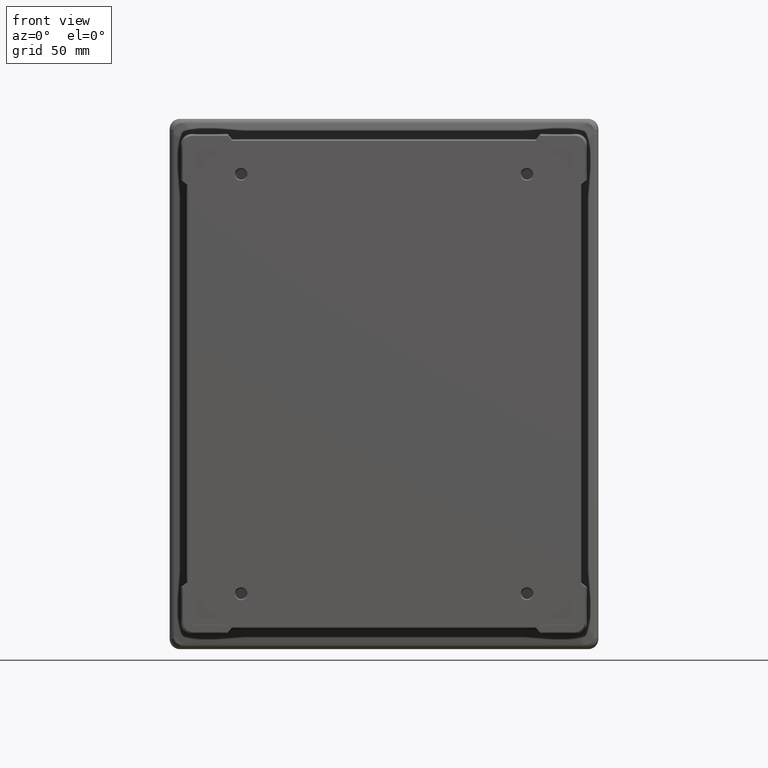
[diagram: clean part render]
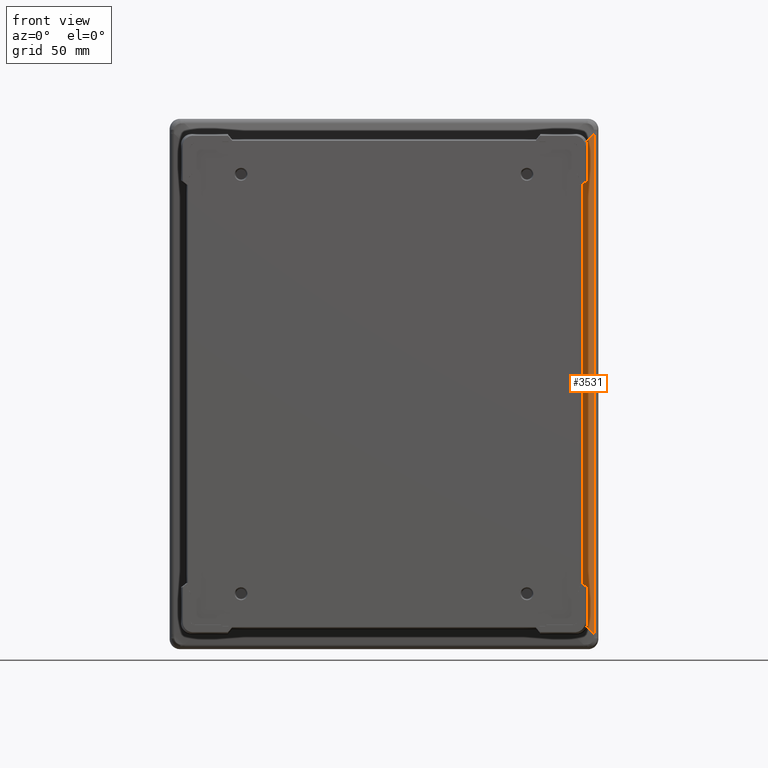
[diagram: same view with one face highlighted and labeled with its STEP entity id]
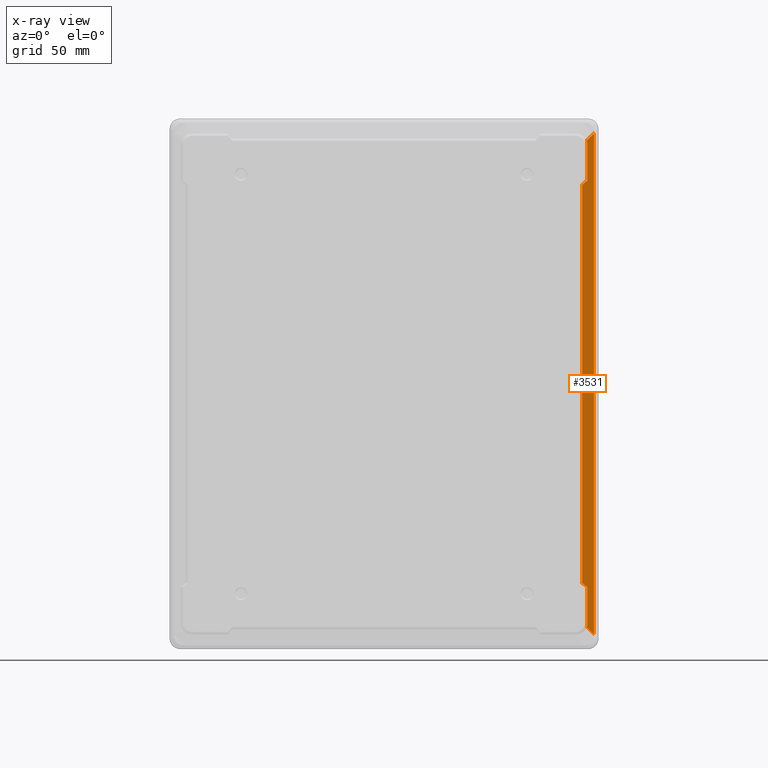
[diagram: x-ray of the same camera — body ghosted, the highlighted face saturated]
A machine part, front view. The second image highlights one B-rep face of the part: STEP entity #3531.
The next image is the same camera in x-ray: the body ghosted, the highlighted face saturated — about 0% of this face is hidden behind the body in this view.
In plain terms, the highlighted planar face has unit normal (0.2079, -0.9781, 0).
Its self-contained STEP definition (entity closure, byte-faithful):
#117 = ORIENTED_EDGE ( 'NONE', *, *, #11456, .T. ) ;
#162 = CARTESIAN_POINT ( 'NONE',  ( 108.1010738657282800, -15.14993851492969900, -127.6012832888752100 ) ) ;
#538 = CARTESIAN_POINT ( 'NONE',  ( 113.5111092271155500, -14.00000000000000200, -140.5111092271155000 ) ) ;
#545 = CARTESIAN_POINT ( 'NONE',  ( 105.4512840569402700, -15.71316872583392800, 105.9030355387283600 ) ) ;
#551 = AXIS2_PLACEMENT_3D ( 'NONE', #538, #13608, #6468 ) ;
#613 = VERTEX_POINT ( 'NONE', #7668 ) ;
#637 = VERTEX_POINT ( 'NONE', #1633 ) ;
#846 = CARTESIAN_POINT ( 'NONE',  ( 111.6005775744771600, -14.40609603904655800, -133.0909177678065600 ) ) ;
#968 = CARTESIAN_POINT ( 'NONE',  ( 108.9858465440107600, -14.96187427657440200, -108.8640732158480100 ) ) ;
#982 = VECTOR ( 'NONE', #4382, 1000.000000000000000 ) ;
#997 = CARTESIAN_POINT ( 'NONE',  ( 111.6005775744771100, -14.40609603904655100, 133.0909177678065000 ) ) ;
#1028 = CARTESIAN_POINT ( 'NONE',  ( 111.6005775744771600, -14.40609603904656000, -140.5111092271155000 ) ) ;
#1080 = VERTEX_POINT ( 'NONE', #1576 ) ;
#1531 = DIRECTION ( 'NONE',  ( 5.447264839874246100E-017, 4.306871428136388100E-017, 1.000000000000000000 ) ) ;
#1571 = ORIENTED_EDGE ( 'NONE', *, *, #14280, .T. ) ;
#1576 = CARTESIAN_POINT ( 'NONE',  ( 107.8261217599845600, -15.20838138915051700, -129.3164619533139600 ) ) ;
#1633 = CARTESIAN_POINT ( 'NONE',  ( 107.8261217599845200, -15.20838138915051900, 129.3164619533139900 ) ) ;
#1755 = EDGE_CURVE ( 'NONE', #5475, #637, #5978, .T. ) ;
#2121 = EDGE_CURVE ( 'NONE', #7888, #6028, #8382, .T. ) ;
#2169 = CARTESIAN_POINT ( 'NONE',  ( 108.0086496996447800, -15.16958387788762300, 128.7618957875661200 ) ) ;
#2197 = EDGE_CURVE ( 'NONE', #2299, #2813, #11588, .T. ) ;
#2291 = CARTESIAN_POINT ( 'NONE',  ( -21.20198171040554800, -42.63415142162009600, 0.2883584829238561300 ) ) ;
#2299 = VERTEX_POINT ( 'NONE', #9672 ) ;
#2395 = VECTOR ( 'NONE', #4707, 1000.000000000000000 ) ;
#2506 = DIRECTION ( 'NONE',  ( 0.6992527780868758000, 0.1486307662483552500, -0.6992527780868754700 ) ) ;
#2813 = VERTEX_POINT ( 'NONE', #12637 ) ;
#2850 = CARTESIAN_POINT ( 'NONE',  ( 108.1010738657282800, -15.14993851492969900, -140.9999999999999700 ) ) ;
#3322 = EDGE_CURVE ( 'NONE', #4328, #13289, #15112, .T. ) ;
#3419 = CARTESIAN_POINT ( 'NONE',  ( 107.8261217599845600, -15.20838138915051700, -129.3164619533139600 ) ) ;
#3505 = DIRECTION ( 'NONE',  ( 0.7565808758080592200, 0.1608162295870528600, 0.6338166285787351100 ) ) ;
#3531 = ADVANCED_FACE ( 'NONE', ( #13054 ), #13441, .T. ) ;
#3666 = VECTOR ( 'NONE', #7040, 1000.000000000000000 ) ;
#3799 = ORIENTED_EDGE ( 'NONE', *, *, #12663, .T. ) ;
#3852 = VECTOR ( 'NONE', #9431, 1000.000000000000100 ) ;
#3912 = VERTEX_POINT ( 'NONE', #5225 ) ;
#4170 = LINE ( 'NONE', #5208, #13003 ) ;
#4303 = ORIENTED_EDGE ( 'NONE', *, *, #2197, .F. ) ;
#4328 = VERTEX_POINT ( 'NONE', #4790 ) ;
#4382 = DIRECTION ( 'NONE',  ( -2.753214806557884100E-019, -3.154871681994939600E-017, -1.000000000000000000 ) ) ;
#4475 = VECTOR ( 'NONE', #7994, 1000.000000000000200 ) ;
#4498 = CARTESIAN_POINT ( 'NONE',  ( 108.1010738657282500, -15.14993851492969600, 127.6012832888750900 ) ) ;
#4521 = EDGE_CURVE ( 'NONE', #2299, #4328, #4170, .T. ) ;
#4625 = CARTESIAN_POINT ( 'NONE',  ( 108.9858465440107100, -14.96187427657440200, 108.8640732158480200 ) ) ;
#4630 = VECTOR ( 'NONE', #3505, 1000.000000000000100 ) ;
#4707 = DIRECTION ( 'NONE',  ( -2.753214806557884100E-019, -3.154871681994939600E-017, -1.000000000000000000 ) ) ;
#4790 = CARTESIAN_POINT ( 'NONE',  ( 108.1010738657282800, -15.14993851492969100, -108.1100544681311800 ) ) ;
#5208 = CARTESIAN_POINT ( 'NONE',  ( 75.33695318017005600, -22.11416735399354700, -104.6664066193232700 ) ) ;
#5225 = CARTESIAN_POINT ( 'NONE',  ( 108.1010738657282400, -15.14993851492974200, 108.1100544681312100 ) ) ;
#5229 = LINE ( 'NONE', #14309, #2395 ) ;
#5344 = EDGE_LOOP ( 'NONE', ( #10720, #10001, #9511, #4303, #10807, #14425, #1571, #3799, #12426, #11286, #117, #7253 ) ) ;
#5475 = VERTEX_POINT ( 'NONE', #997 ) ;
#5676 = DIRECTION ( 'NONE',  ( -1.476321991264318900E-016, 1.100027945693361300E-019, 1.000000000000000000 ) ) ;
#5957 = LINE ( 'NONE', #11193, #15507 ) ;
#5978 = LINE ( 'NONE', #2291, #3666 ) ;
#6028 = VERTEX_POINT ( 'NONE', #12847 ) ;
#6468 = DIRECTION ( 'NONE',  ( 0.9781476007338061300, 0.2079116908177565700, 0.0000000000000000000 ) ) ;
#6612 = EDGE_CURVE ( 'NONE', #613, #3912, #5229, .T. ) ;
#7010 = CARTESIAN_POINT ( 'NONE',  ( 108.1010738657282800, -15.14993851492969900, -127.6012832888752100 ) ) ;
#7040 = DIRECTION ( 'NONE',  ( -0.6992527780868756900, -0.1486307662483552500, -0.6992527780868756900 ) ) ;
#7253 = ORIENTED_EDGE ( 'NONE', *, *, #6612, .T. ) ;
#7668 = CARTESIAN_POINT ( 'NONE',  ( 108.1010738657282500, -15.14993851492969600, 127.6012832888750900 ) ) ;
#7822 = EDGE_CURVE ( 'NONE', #2813, #7888, #5957, .T. ) ;
#7888 = VERTEX_POINT ( 'NONE', #545 ) ;
#7994 = DIRECTION ( 'NONE',  ( -0.9730190161761217400, -0.2068215765179411700, -0.1022684195941518400 ) ) ;
#8149 = CARTESIAN_POINT ( 'NONE',  ( 75.33695318017002800, -22.11416735399354700, 104.6664066193233000 ) ) ;
#8312 = CARTESIAN_POINT ( 'NONE',  ( 108.0086496996447800, -15.16958387788762700, -128.7618957875661200 ) ) ;
#8382 = LINE ( 'NONE', #4625, #4630 ) ;
#8399 =( BOUNDED_CURVE ( )  B_SPLINE_CURVE ( 3, ( #9452, #2169, #10656, #4498 ),
 .UNSPECIFIED., .F., .F. ) 
 B_SPLINE_CURVE_WITH_KNOTS ( ( 4, 4 ),
 ( 6.005297046354373300, 6.322526357496648200 ),
 .UNSPECIFIED. ) 
 CURVE ( )  GEOMETRIC_REPRESENTATION_ITEM ( )  RATIONAL_B_SPLINE_CURVE ( ( 1.000000000000000000, 0.9916313643747356500, 0.9916313643747356500, 1.000000000000000000 ) ) 
 REPRESENTATION_ITEM ( '' )  );
#9431 = DIRECTION ( 'NONE',  ( -0.7565808758080589900, -0.1608162295870527400, 0.6338166285787354400 ) ) ;
#9452 = CARTESIAN_POINT ( 'NONE',  ( 107.8261217599845200, -15.20838138915051900, 129.3164619533139900 ) ) ;
#9489 = VECTOR ( 'NONE', #2506, 1000.000000000000100 ) ;
#9511 = ORIENTED_EDGE ( 'NONE', *, *, #7822, .F. ) ;
#9672 = CARTESIAN_POINT ( 'NONE',  ( 108.0835876941200700, -15.15365531544356300, -108.1082165974365800 ) ) ;
#10001 = ORIENTED_EDGE ( 'NONE', *, *, #2121, .F. ) ;
#10656 = CARTESIAN_POINT ( 'NONE',  ( 108.1010738657282500, -15.14993851492969600, 128.1853446194411400 ) ) ;
#10720 = ORIENTED_EDGE ( 'NONE', *, *, #13032, .T. ) ;
#10807 = ORIENTED_EDGE ( 'NONE', *, *, #4521, .T. ) ;
#11193 = CARTESIAN_POINT ( 'NONE',  ( 105.4512840569402500, -15.71316872583393800, -131.0000000000000000 ) ) ;
#11286 = ORIENTED_EDGE ( 'NONE', *, *, #1755, .T. ) ;
#11456 = EDGE_CURVE ( 'NONE', #637, #613, #8399, .T. ) ;
#11481 = VECTOR ( 'NONE', #5676, 1000.000000000000000 ) ;
#11588 = LINE ( 'NONE', #968, #3852 ) ;
#11645 = LINE ( 'NONE', #1028, #11481 ) ;
#12116 = LINE ( 'NONE', #14339, #9489 ) ;
#12161 = EDGE_CURVE ( 'NONE', #12982, #5475, #11645, .T. ) ;
#12426 = ORIENTED_EDGE ( 'NONE', *, *, #12161, .T. ) ;
#12637 = CARTESIAN_POINT ( 'NONE',  ( 105.4512840569402500, -15.71316872583394200, -105.9030355387282900 ) ) ;
#12663 = EDGE_CURVE ( 'NONE', #1080, #12982, #12116, .T. ) ;
#12847 = CARTESIAN_POINT ( 'NONE',  ( 108.0835876941200400, -15.15365531544356500, 108.1082165974366100 ) ) ;
#12982 = VERTEX_POINT ( 'NONE', #846 ) ;
#13003 = VECTOR ( 'NONE', #13634, 1000.000000000000200 ) ;
#13032 = EDGE_CURVE ( 'NONE', #3912, #6028, #14614, .T. ) ;
#13054 = FACE_OUTER_BOUND ( 'NONE', #5344, .T. ) ;
#13289 = VERTEX_POINT ( 'NONE', #162 ) ;
#13441 = PLANE ( 'NONE',  #551 ) ;
#13608 = DIRECTION ( 'NONE',  ( 0.2079116908177565900, -0.9781476007338062400, 3.080205910910219400E-017 ) ) ;
#13634 = DIRECTION ( 'NONE',  ( 0.9730190161761217400, 0.2068215765179411700, -0.1022684195941518400 ) ) ;
#14280 = EDGE_CURVE ( 'NONE', #13289, #1080, #15423, .T. ) ;
#14309 = CARTESIAN_POINT ( 'NONE',  ( 108.1010738657282500, -15.14993851492970500, -140.9999999999999700 ) ) ;
#14339 = CARTESIAN_POINT ( 'NONE',  ( 116.2050818946928400, -13.42737843254676400, -137.6954220880222400 ) ) ;
#14386 = CARTESIAN_POINT ( 'NONE',  ( 108.1010738657282700, -15.14993851492969800, -128.1853446194411700 ) ) ;
#14425 = ORIENTED_EDGE ( 'NONE', *, *, #3322, .T. ) ;
#14614 = LINE ( 'NONE', #8149, #4475 ) ;
#15112 = LINE ( 'NONE', #2850, #982 ) ;
#15423 =( BOUNDED_CURVE ( )  B_SPLINE_CURVE ( 3, ( #7010, #14386, #8312, #3419 ),
 .UNSPECIFIED., .F., .F. ) 
 B_SPLINE_CURVE_WITH_KNOTS ( ( 4, 4 ),
 ( 6.243844256862544700, 6.561073568004795600 ),
 .UNSPECIFIED. ) 
 CURVE ( )  GEOMETRIC_REPRESENTATION_ITEM ( )  RATIONAL_B_SPLINE_CURVE ( ( 1.000000000000000000, 0.9916313643747367600, 0.9916313643747367600, 1.000000000000000000 ) ) 
 REPRESENTATION_ITEM ( '' )  );
#15507 = VECTOR ( 'NONE', #1531, 1000.000000000000000 ) ;